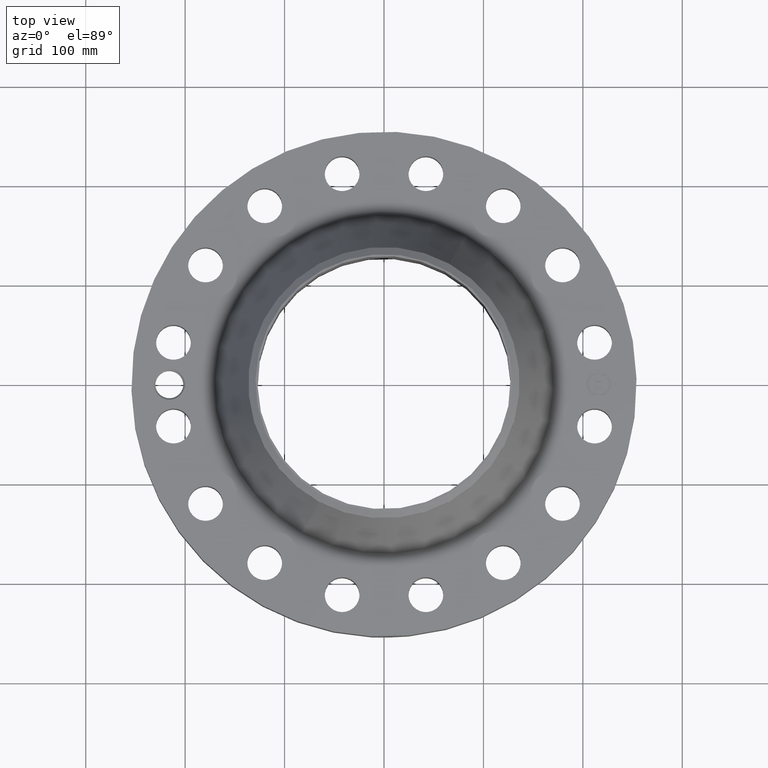
[diagram: clean part render]
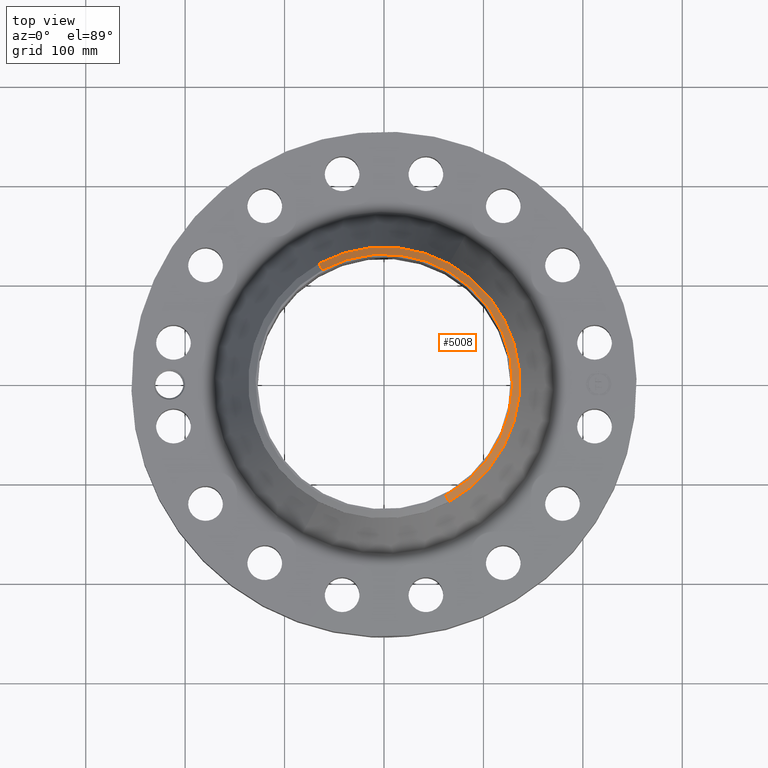
[diagram: same view with one face highlighted and labeled with its STEP entity id]
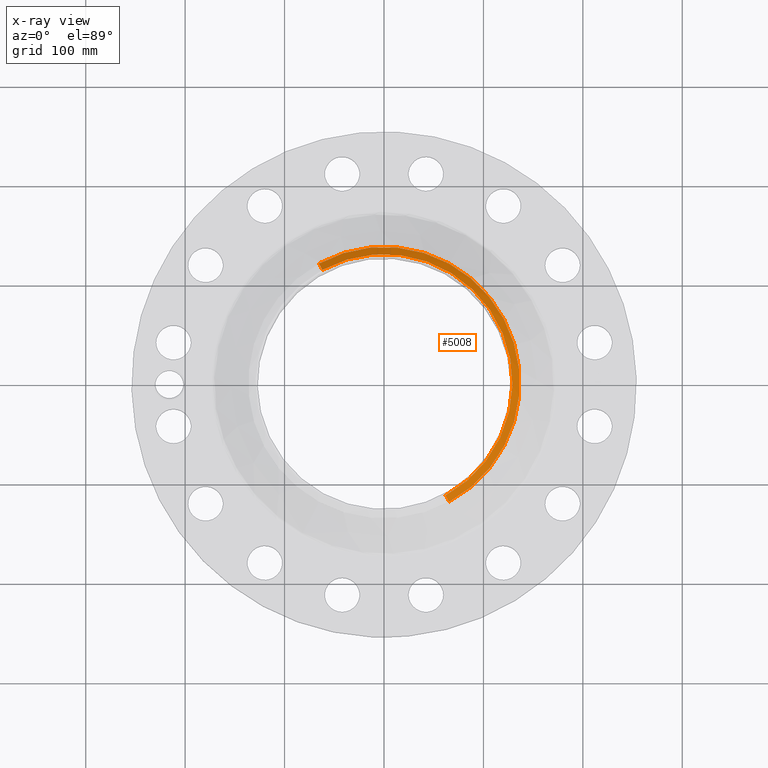
[diagram: x-ray of the same camera — body ghosted, the highlighted face saturated]
A machine part, top view. The second image highlights one B-rep face of the part: STEP entity #5008.
The next image is the same camera in x-ray: the body ghosted, the highlighted face saturated — about 0% of this face is hidden behind the body in this view.
In plain terms, the highlighted conical surface has half-angle 52.5 deg.
Its self-contained STEP definition (entity closure, byte-faithful):
#3835=AXIS2_PLACEMENT_3D('Circle Axis2P3D',#3833,#3834,$) ;
#3862=AXIS2_PLACEMENT_3D('Circle Axis2P3D',#3860,#3861,$) ;
#4636=AXIS2_PLACEMENT_3D('Circle Axis2P3D',#4634,#4635,$) ;
#4989=AXIS2_PLACEMENT_3D('Cone Axis2P3D',#4986,#4987,#4988) ;
#3830=CARTESIAN_POINT('Vertex',(2.57691227001,4.71700627018,6.03034509728)) ;
#3833=CARTESIAN_POINT('Axis2P3D Location',(0.,0.,6.03034509728)) ;
#3837=CARTESIAN_POINT('Vertex',(2.57691227001,-4.71700627018,6.03034509728)) ;
#3857=CARTESIAN_POINT('Vertex',(-2.57691227001,4.71700627018,6.03034509728)) ;
#3860=CARTESIAN_POINT('Axis2P3D Location',(0.,0.,6.03034509728)) ;
#4634=CARTESIAN_POINT('Axis2P3D Location',(0.,0.,6.25000000002)) ;
#4638=CARTESIAN_POINT('Vertex',(2.43967199083,-4.46578962421,6.25000000003)) ;
#4640=CARTESIAN_POINT('Vertex',(-2.43967199083,4.46578962421,6.25000000003)) ;
#4986=CARTESIAN_POINT('Axis2P3D Location',(0.,0.,6.25000000003)) ;
#4991=CARTESIAN_POINT('Line Origine',(-2.50829213042,4.5913979472,6.14017254865)) ;
#4996=CARTESIAN_POINT('Line Origine',(2.50829213042,-4.5913979472,6.14017254865)) ;
#3834=DIRECTION('Axis2P3D Direction',(0.,0.,-0.0393700787402)) ;
#3861=DIRECTION('Axis2P3D Direction',(0.,0.,-0.0393700787402)) ;
#4635=DIRECTION('Axis2P3D Direction',(0.,0.,-0.0393700787402)) ;
#4987=DIRECTION('Axis2P3D Direction',(-0.,-0.,-0.0393700787402)) ;
#4988=DIRECTION('Axis2P3D XDirection',(0.0188750212049,-0.0345504945626,0.)) ;
#4992=DIRECTION('Vector Direction',(-0.014974561121,0.02741075027,-0.023966985394)) ;
#4997=DIRECTION('Vector Direction',(0.014974561121,-0.02741075027,-0.023966985394)) ;
#4993=VECTOR('Line Direction',#4992,0.0393700787402) ;
#4998=VECTOR('Line Direction',#4997,0.0393700787402) ;
#5002=ORIENTED_EDGE('',*,*,#4995,.F.) ;
#5003=ORIENTED_EDGE('',*,*,#4642,.F.) ;
#5004=ORIENTED_EDGE('',*,*,#5000,.T.) ;
#5005=ORIENTED_EDGE('',*,*,#3839,.T.) ;
#5006=ORIENTED_EDGE('',*,*,#3864,.F.) ;
#5008=ADVANCED_FACE('PartBody',(#5007),#4990,.T.) ;
#3836=CIRCLE('generated circle',#3835,5.37500000002) ;
#3863=CIRCLE('generated circle',#3862,5.37500000002) ;
#4637=CIRCLE('generated circle',#4636,5.0887401575) ;
#4990=CONICAL_SURFACE('Cone',#4989,5.0887401575,0.916297857297) ;
#3839=EDGE_CURVE('',#3838,#3831,#3836,.F.) ;
#3864=EDGE_CURVE('',#3858,#3831,#3863,.T.) ;
#4642=EDGE_CURVE('',#4639,#4641,#4637,.F.) ;
#4995=EDGE_CURVE('',#4641,#3858,#4994,.T.) ;
#5000=EDGE_CURVE('',#4639,#3838,#4999,.T.) ;
#5001=EDGE_LOOP('',(#5002,#5003,#5004,#5005,#5006)) ;
#5007=FACE_OUTER_BOUND('',#5001,.T.) ;
#4994=LINE('Line',#4991,#4993) ;
#4999=LINE('Line',#4996,#4998) ;
#3831=VERTEX_POINT('',#3830) ;
#3838=VERTEX_POINT('',#3837) ;
#3858=VERTEX_POINT('',#3857) ;
#4639=VERTEX_POINT('',#4638) ;
#4641=VERTEX_POINT('',#4640) ;